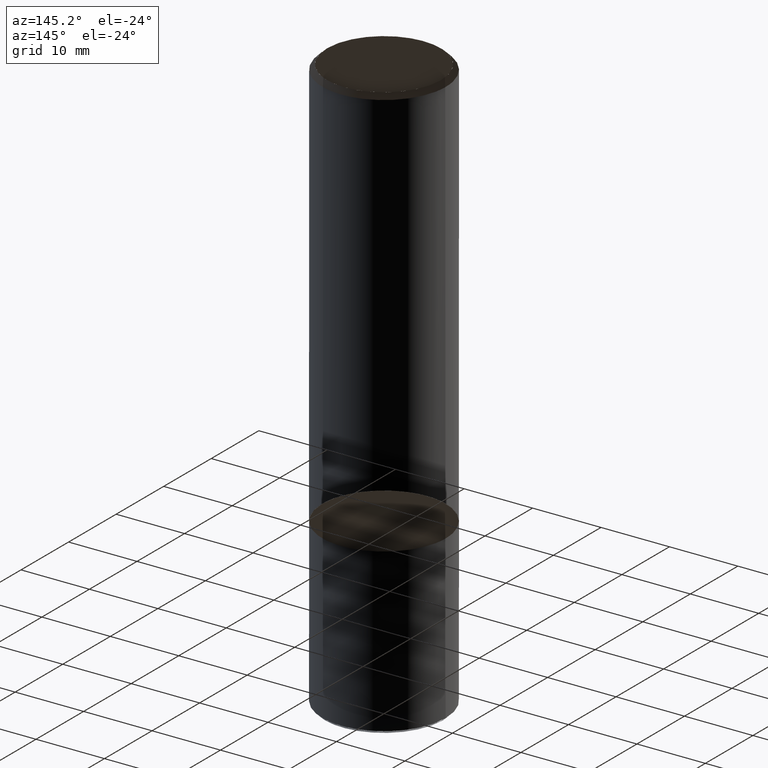
[diagram: clean part render]
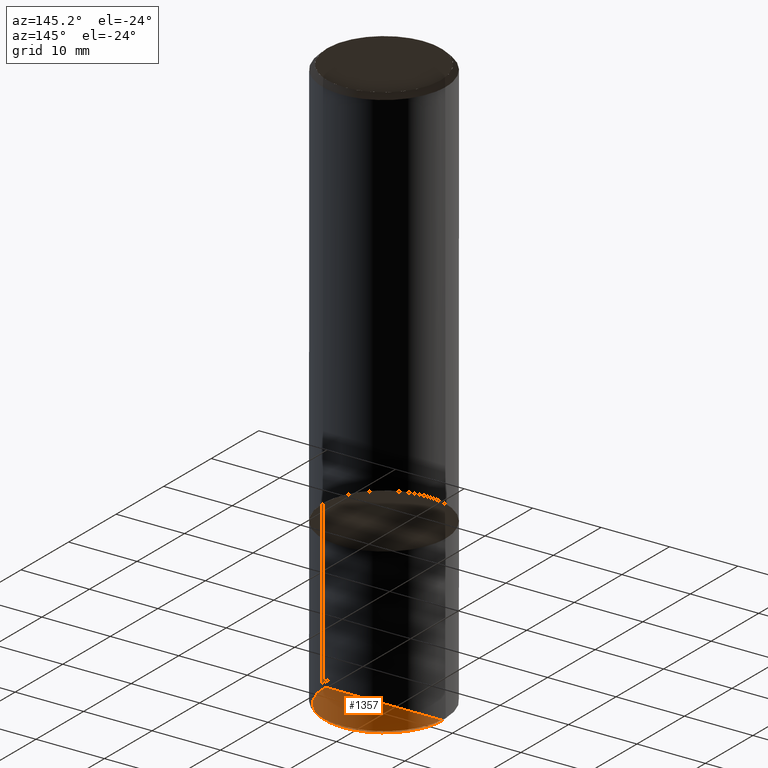
[diagram: same view with one face highlighted and labeled with its STEP entity id]
A machine part, auxiliary view. The second image highlights one B-rep face of the part: STEP entity #1357.
In plain terms, the highlighted face is a freeform B-spline surface patch.
Its self-contained STEP definition (entity closure, byte-faithful):
#1212=CARTESIAN_POINT('',(0.0,0.0,-24.001));
#1213=CARTESIAN_POINT('',(8.6,0.0,-24.001));
#1217=CARTESIAN_POINT('',(-8.6,0.0,-24.001));
#1229=CARTESIAN_POINT('',(-8.6,-8.6,-24.001));
#1230=CARTESIAN_POINT('',(0.0,-8.6,-24.001));
#1231=CARTESIAN_POINT('',(8.6,-8.6,-24.001));
#1342=(
BOUNDED_SURFACE()
B_SPLINE_SURFACE(1,2,(
(#1212,#1212,#1212,#1212,#1212),
(#1217,#1229,#1230,#1231,#1213)
), .UNSPECIFIED.,.F.,.F.,.F.)
B_SPLINE_SURFACE_WITH_KNOTS((2,2),(3,2,3),(
0.0,1.0),(
0.0,0.5,1.0), .UNSPECIFIED.)
GEOMETRIC_REPRESENTATION_ITEM()
RATIONAL_B_SPLINE_SURFACE(((1.0,0.707106781187,1.0,0.707106781187,1.0),
(1.0,0.707106781187,1.0,0.707106781187,1.0)
))
REPRESENTATION_ITEM('')
SURFACE()
);
#1343=(
BOUNDED_CURVE()
B_SPLINE_CURVE(1,(#1217,#1212),.UNSPECIFIED.,.F.,.F.)
B_SPLINE_CURVE_WITH_KNOTS((2,2),
(0.0,1.0),.UNSPECIFIED.)
CURVE()
GEOMETRIC_REPRESENTATION_ITEM()
RATIONAL_B_SPLINE_CURVE((1.0,1.0))
REPRESENTATION_ITEM('')
);
#1344=(
BOUNDED_CURVE()
B_SPLINE_CURVE(1,(#1212,#1213),.UNSPECIFIED.,.F.,.F.)
B_SPLINE_CURVE_WITH_KNOTS((2,2),
(0.0,1.0),.UNSPECIFIED.)
CURVE()
GEOMETRIC_REPRESENTATION_ITEM()
RATIONAL_B_SPLINE_CURVE((1.0,1.0))
REPRESENTATION_ITEM('')
);
#1345=(
BOUNDED_CURVE()
B_SPLINE_CURVE(2,(#1213,#1231,#1230,#1229,#1217),.UNSPECIFIED.,.F.,.F.)
B_SPLINE_CURVE_WITH_KNOTS((3,2,3),
(0.0,0.5,1.0),.UNSPECIFIED.)
CURVE()
GEOMETRIC_REPRESENTATION_ITEM()
RATIONAL_B_SPLINE_CURVE((1.0,0.707106781187,1.0,0.707106781187,1.0))
REPRESENTATION_ITEM('')
);
#1346=VERTEX_POINT('',#1212);
#1347=VERTEX_POINT('',#1213);
#1348=VERTEX_POINT('',#1217);
#1349=EDGE_CURVE('',#1348,#1346,#1343,.T.);
#1350=EDGE_CURVE('',#1346,#1347,#1344,.T.);
#1351=EDGE_CURVE('',#1347,#1348,#1345,.T.);
#1352=ORIENTED_EDGE('',*,*,#1349,.T.);
#1353=ORIENTED_EDGE('',*,*,#1350,.T.);
#1354=ORIENTED_EDGE('',*,*,#1351,.T.);
#1355=EDGE_LOOP('',(#1352,#1353,#1354));
#1356=FACE_OUTER_BOUND('',#1355,.T.);
#1357=ADVANCED_FACE('',(#1356),#1342,.T.);